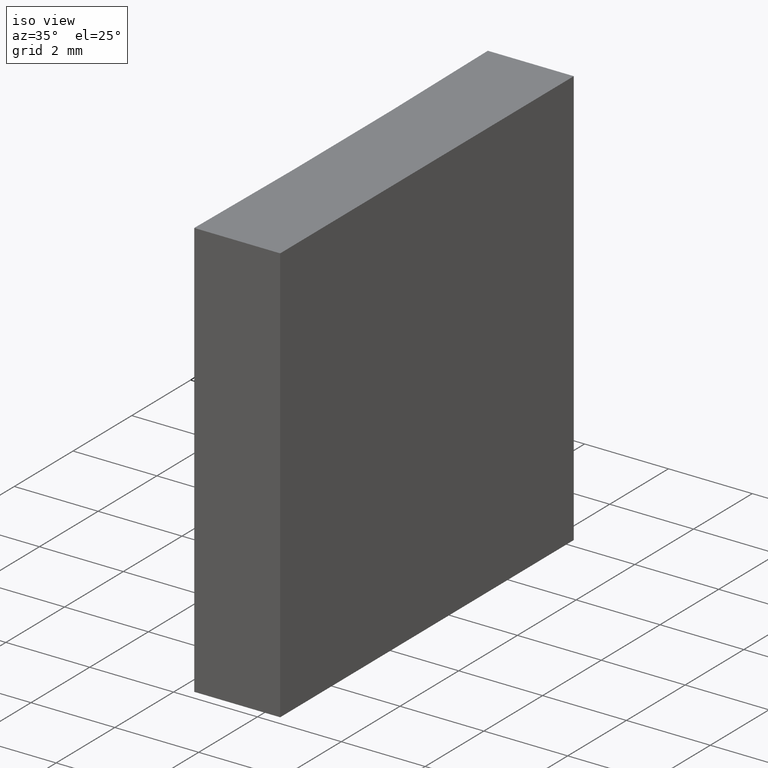
[diagram: clean part render]
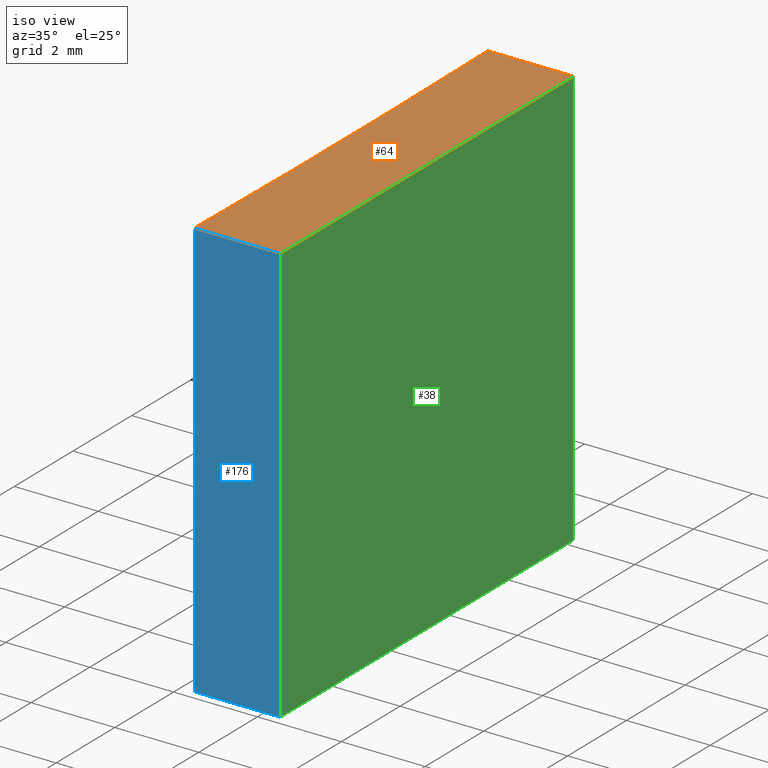
[diagram: same view with three faces highlighted in distinct colors, each labeled with its STEP entity id]
A machine part, iso view with three faces highlighted in distinct colors.
Their STEP definitions:

[orange] entity #64 — the highlighted planar face has unit normal (0, 0, 1).
#2 = CARTESIAN_POINT ( 'NONE',  ( 126.6401433497259035, 83.86223563107159862, 10.00000000000000000 ) ) ;
#17 = PLANE ( 'NONE',  #116 ) ;
#27 = CARTESIAN_POINT ( 'NONE',  ( 126.6401433497259035, 93.86223563107158441, 10.00000000000000000 ) ) ;
#35 = VECTOR ( 'NONE', #40, 1000.000000000000000 ) ;
#40 = DIRECTION ( 'NONE',  ( -0.000000000000000000, 1.000000000000000000, -0.000000000000000000 ) ) ;
#41 = AXIS2_PLACEMENT_3D ( 'NONE', #70, #153, #87 ) ;
#43 = ORIENTED_EDGE ( 'NONE', *, *, #74, .T. ) ;
#47 = LINE ( 'NONE', #27, #35 ) ;
#49 = FACE_OUTER_BOUND ( 'NONE', #165, .T. ) ;
#51 = LINE ( 'NONE', #132, #189 ) ;
#63 = VERTEX_POINT ( 'NONE', #89 ) ;
#64 = ADVANCED_FACE ( 'NONE', ( #49 ), #17, .T. ) ;
#68 = DIRECTION ( 'NONE',  ( 0.000000000000000000, 0.000000000000000000, 1.000000000000000000 ) ) ;
#70 = CARTESIAN_POINT ( 'NONE',  ( -133.8614962271976196, 88.86223563107161283, 10.00000000000000000 ) ) ;
#74 = EDGE_CURVE ( 'NONE', #63, #200, #205, .T. ) ;
#80 = CARTESIAN_POINT ( 'NONE',  ( 124.5901433497259063, 83.86223563107159862, 10.00000000000000000 ) ) ;
#87 = DIRECTION ( 'NONE',  ( 1.000000000000000000, 0.000000000000000000, 0.000000000000000000 ) ) ;
#89 = CARTESIAN_POINT ( 'NONE',  ( 124.5901433497258921, 93.86223563107158441, 10.00000000000000000 ) ) ;
#116 = AXIS2_PLACEMENT_3D ( 'NONE', #148, #68, #129 ) ;
#124 = VERTEX_POINT ( 'NONE', #150 ) ;
#125 = CARTESIAN_POINT ( 'NONE',  ( 124.5901433497259063, 83.86223563107159862, 10.00000000000000000 ) ) ;
#129 = DIRECTION ( 'NONE',  ( 1.000000000000000000, 0.000000000000000000, -0.000000000000000000 ) ) ;
#130 = EDGE_CURVE ( 'NONE', #124, #63, #51, .T. ) ;
#132 = CARTESIAN_POINT ( 'NONE',  ( 124.5901433497258921, 93.86223563107158441, 10.00000000000000000 ) ) ;
#147 = ORIENTED_EDGE ( 'NONE', *, *, #130, .T. ) ;
#148 = CARTESIAN_POINT ( 'NONE',  ( -133.8614962271976196, 88.86223563107161283, 10.00000000000000000 ) ) ;
#150 = CARTESIAN_POINT ( 'NONE',  ( 126.6401433497259035, 93.86223563107158441, 10.00000000000000000 ) ) ;
#153 = DIRECTION ( 'NONE',  ( -0.000000000000000000, -0.000000000000000000, -1.000000000000000000 ) ) ;
#161 = EDGE_CURVE ( 'NONE', #227, #124, #47, .T. ) ;
#165 = EDGE_LOOP ( 'NONE', ( #43, #180, #220, #147 ) ) ;
#168 = DIRECTION ( 'NONE',  ( 1.000000000000000000, 0.000000000000000000, 0.000000000000000000 ) ) ;
#180 = ORIENTED_EDGE ( 'NONE', *, *, #237, .T. ) ;
#189 = VECTOR ( 'NONE', #204, 1000.000000000000000 ) ;
#200 = VERTEX_POINT ( 'NONE', #80 ) ;
#204 = DIRECTION ( 'NONE',  ( -1.000000000000000000, -0.000000000000000000, -0.000000000000000000 ) ) ;
#205 = CIRCLE ( 'NONE', #41, 258.4999999999999432 ) ;
#207 = VECTOR ( 'NONE', #168, 1000.000000000000000 ) ;
#220 = ORIENTED_EDGE ( 'NONE', *, *, #161, .T. ) ;
#224 = LINE ( 'NONE', #125, #207 ) ;
#227 = VERTEX_POINT ( 'NONE', #2 ) ;
#237 = EDGE_CURVE ( 'NONE', #200, #227, #224, .T. ) ;

[blue] entity #176 — the highlighted planar face has unit normal (0, 1, 0).
#2 = CARTESIAN_POINT ( 'NONE',  ( 126.6401433497259035, 83.86223563107159862, 10.00000000000000000 ) ) ;
#3 = DIRECTION ( 'NONE',  ( 0.000000000000000000, -0.000000000000000000, 1.000000000000000000 ) ) ;
#8 = CARTESIAN_POINT ( 'NONE',  ( 124.5901433497259063, 83.86223563107159862, 10.00000000000000000 ) ) ;
#12 = DIRECTION ( 'NONE',  ( -0.000000000000000000, -0.000000000000000000, -1.000000000000000000 ) ) ;
#21 = VECTOR ( 'NONE', #44, 1000.000000000000000 ) ;
#31 = ORIENTED_EDGE ( 'NONE', *, *, #109, .T. ) ;
#44 = DIRECTION ( 'NONE',  ( -0.000000000000000000, -0.000000000000000000, -1.000000000000000000 ) ) ;
#57 = VERTEX_POINT ( 'NONE', #110 ) ;
#66 = ORIENTED_EDGE ( 'NONE', *, *, #237, .F. ) ;
#67 = LINE ( 'NONE', #217, #134 ) ;
#71 = AXIS2_PLACEMENT_3D ( 'NONE', #8, #141, #3 ) ;
#80 = CARTESIAN_POINT ( 'NONE',  ( 124.5901433497259063, 83.86223563107159862, 10.00000000000000000 ) ) ;
#96 = CARTESIAN_POINT ( 'NONE',  ( 124.5901433497259063, 83.86223563107159862, 0.000000000000000000 ) ) ;
#97 = VERTEX_POINT ( 'NONE', #234 ) ;
#109 = EDGE_CURVE ( 'NONE', #200, #97, #67, .T. ) ;
#110 = CARTESIAN_POINT ( 'NONE',  ( 126.6401433497259035, 83.86223563107159862, 0.000000000000000000 ) ) ;
#119 = FACE_OUTER_BOUND ( 'NONE', #225, .T. ) ;
#121 = LINE ( 'NONE', #96, #213 ) ;
#125 = CARTESIAN_POINT ( 'NONE',  ( 124.5901433497259063, 83.86223563107159862, 10.00000000000000000 ) ) ;
#134 = VECTOR ( 'NONE', #12, 1000.000000000000000 ) ;
#139 = ORIENTED_EDGE ( 'NONE', *, *, #239, .T. ) ;
#141 = DIRECTION ( 'NONE',  ( 0.000000000000000000, 1.000000000000000000, 0.000000000000000000 ) ) ;
#143 = CARTESIAN_POINT ( 'NONE',  ( 126.6401433497259035, 83.86223563107159862, 10.00000000000000000 ) ) ;
#168 = DIRECTION ( 'NONE',  ( 1.000000000000000000, 0.000000000000000000, 0.000000000000000000 ) ) ;
#175 = EDGE_CURVE ( 'NONE', #227, #57, #183, .T. ) ;
#176 = ADVANCED_FACE ( 'NONE', ( #119 ), #215, .F. ) ;
#183 = LINE ( 'NONE', #143, #21 ) ;
#200 = VERTEX_POINT ( 'NONE', #80 ) ;
#202 = DIRECTION ( 'NONE',  ( 1.000000000000000000, 0.000000000000000000, 0.000000000000000000 ) ) ;
#203 = ORIENTED_EDGE ( 'NONE', *, *, #175, .F. ) ;
#207 = VECTOR ( 'NONE', #168, 1000.000000000000000 ) ;
#213 = VECTOR ( 'NONE', #202, 1000.000000000000000 ) ;
#215 = PLANE ( 'NONE',  #71 ) ;
#217 = CARTESIAN_POINT ( 'NONE',  ( 124.5901433497259063, 83.86223563107159862, 10.00000000000000000 ) ) ;
#224 = LINE ( 'NONE', #125, #207 ) ;
#225 = EDGE_LOOP ( 'NONE', ( #139, #203, #66, #31 ) ) ;
#227 = VERTEX_POINT ( 'NONE', #2 ) ;
#234 = CARTESIAN_POINT ( 'NONE',  ( 124.5901433497259063, 83.86223563107159862, 0.000000000000000000 ) ) ;
#237 = EDGE_CURVE ( 'NONE', #200, #227, #224, .T. ) ;
#239 = EDGE_CURVE ( 'NONE', #97, #57, #121, .T. ) ;

[green] entity #38 — the highlighted planar face has unit normal (-1, 0, 0).
#2 = CARTESIAN_POINT ( 'NONE',  ( 126.6401433497259035, 83.86223563107159862, 10.00000000000000000 ) ) ;
#5 = VERTEX_POINT ( 'NONE', #122 ) ;
#11 = CARTESIAN_POINT ( 'NONE',  ( 126.6401433497259035, 93.86223563107158441, 10.00000000000000000 ) ) ;
#13 = ORIENTED_EDGE ( 'NONE', *, *, #34, .F. ) ;
#21 = VECTOR ( 'NONE', #44, 1000.000000000000000 ) ;
#27 = CARTESIAN_POINT ( 'NONE',  ( 126.6401433497259035, 93.86223563107158441, 10.00000000000000000 ) ) ;
#34 = EDGE_CURVE ( 'NONE', #124, #5, #201, .T. ) ;
#35 = VECTOR ( 'NONE', #40, 1000.000000000000000 ) ;
#38 = ADVANCED_FACE ( 'NONE', ( #48 ), #128, .F. ) ;
#40 = DIRECTION ( 'NONE',  ( -0.000000000000000000, 1.000000000000000000, -0.000000000000000000 ) ) ;
#44 = DIRECTION ( 'NONE',  ( -0.000000000000000000, -0.000000000000000000, -1.000000000000000000 ) ) ;
#47 = LINE ( 'NONE', #27, #35 ) ;
#48 = FACE_OUTER_BOUND ( 'NONE', #169, .T. ) ;
#57 = VERTEX_POINT ( 'NONE', #110 ) ;
#75 = LINE ( 'NONE', #166, #196 ) ;
#84 = DIRECTION ( 'NONE',  ( -0.000000000000000000, -0.000000000000000000, -1.000000000000000000 ) ) ;
#93 = VECTOR ( 'NONE', #84, 1000.000000000000000 ) ;
#107 = ORIENTED_EDGE ( 'NONE', *, *, #175, .T. ) ;
#108 = DIRECTION ( 'NONE',  ( 0.000000000000000000, 0.000000000000000000, 1.000000000000000000 ) ) ;
#110 = CARTESIAN_POINT ( 'NONE',  ( 126.6401433497259035, 83.86223563107159862, 0.000000000000000000 ) ) ;
#113 = DIRECTION ( 'NONE',  ( -1.000000000000000000, 0.000000000000000000, 0.000000000000000000 ) ) ;
#122 = CARTESIAN_POINT ( 'NONE',  ( 126.6401433497259035, 93.86223563107158441, 0.000000000000000000 ) ) ;
#124 = VERTEX_POINT ( 'NONE', #150 ) ;
#128 = PLANE ( 'NONE',  #221 ) ;
#143 = CARTESIAN_POINT ( 'NONE',  ( 126.6401433497259035, 83.86223563107159862, 10.00000000000000000 ) ) ;
#145 = ORIENTED_EDGE ( 'NONE', *, *, #194, .T. ) ;
#150 = CARTESIAN_POINT ( 'NONE',  ( 126.6401433497259035, 93.86223563107158441, 10.00000000000000000 ) ) ;
#161 = EDGE_CURVE ( 'NONE', #227, #124, #47, .T. ) ;
#164 = DIRECTION ( 'NONE',  ( -0.000000000000000000, 1.000000000000000000, -0.000000000000000000 ) ) ;
#166 = CARTESIAN_POINT ( 'NONE',  ( 126.6401433497259035, 93.86223563107158441, 0.000000000000000000 ) ) ;
#169 = EDGE_LOOP ( 'NONE', ( #145, #13, #210, #107 ) ) ;
#175 = EDGE_CURVE ( 'NONE', #227, #57, #183, .T. ) ;
#183 = LINE ( 'NONE', #143, #21 ) ;
#188 = CARTESIAN_POINT ( 'NONE',  ( 126.6401433497259035, 93.86223563107158441, 10.00000000000000000 ) ) ;
#194 = EDGE_CURVE ( 'NONE', #57, #5, #75, .T. ) ;
#196 = VECTOR ( 'NONE', #164, 1000.000000000000000 ) ;
#201 = LINE ( 'NONE', #11, #93 ) ;
#210 = ORIENTED_EDGE ( 'NONE', *, *, #161, .F. ) ;
#221 = AXIS2_PLACEMENT_3D ( 'NONE', #188, #113, #108 ) ;
#227 = VERTEX_POINT ( 'NONE', #2 ) ;